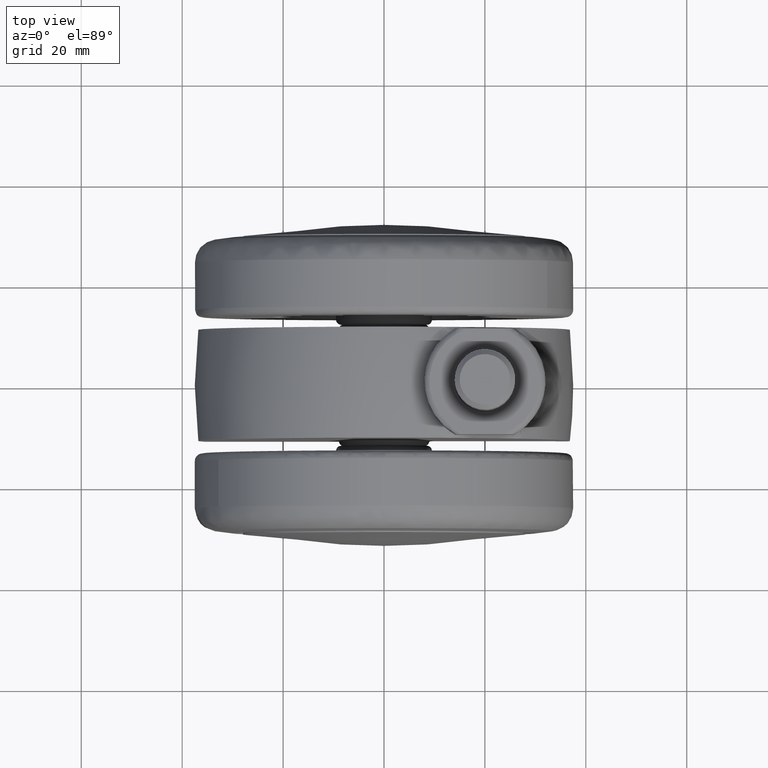
[diagram: clean part render]
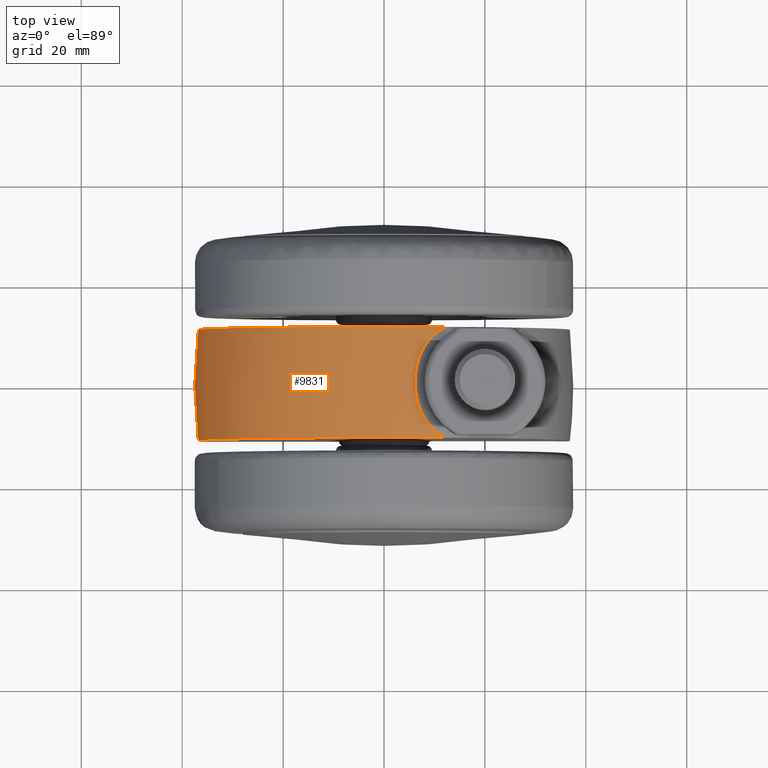
[diagram: same view with one face highlighted and labeled with its STEP entity id]
A machine part, top view. The second image highlights one B-rep face of the part: STEP entity #9831.
In plain terms, the highlighted face is a freeform B-spline surface patch.
Its self-contained STEP definition (entity closure, byte-faithful):
#8500=CARTESIAN_POINT('',(12.126221924218580,-11.0,34.843362679911948));
#8501=VERTEX_POINT('',#8500);
#9144=CARTESIAN_POINT('',(12.126223093466240,11.000000747168119,34.843361887155950));
#9145=VERTEX_POINT('',#9144);
#9492=CARTESIAN_POINT('',(-35.512042467496002,-11.0,-10.0));
#9493=VERTEX_POINT('',#9492);
#9494=CARTESIAN_POINT('',(-35.512042381589737,11.0,-10.0));
#9495=VERTEX_POINT('',#9494);
#9496=CARTESIAN_POINT('',(-35.512042467496009,-10.999999999999980,-10.0));
#9497=CARTESIAN_POINT('',(-35.722096988441528,-9.173054248229072,-10.0));
#9498=CARTESIAN_POINT('',(-35.879753233056597,-7.340362461635415,-10.0));
#9499=CARTESIAN_POINT('',(-36.037466574129184,-4.582686691157622,-9.999999999999998));
#9500=CARTESIAN_POINT('',(-36.076900044553547,-3.662020750382056,-9.999999999999998));
#9501=CARTESIAN_POINT('',(-36.116239311995969,-2.278849356673319,-10.0));
#9502=CARTESIAN_POINT('',(-36.130955343875449,-1.586720444074463,-9.999999999999998));
#9503=CARTESIAN_POINT('',(-36.139423116973433,-0.778282562026476,-9.999999999999993));
#9504=CARTESIAN_POINT('',(-36.141183633090328,-0.431604279640513,-10.0));
#9505=CARTESIAN_POINT('',(-36.141941615547573,-0.200439839291833,-9.999999999999996));
#9506=CARTESIAN_POINT('',(-36.142112622947081,-0.084648974540542,-10.0));
#9507=CARTESIAN_POINT('',(-36.141487291769003,1.876749695081560,-10.0));
#9508=CARTESIAN_POINT('',(-36.087916772033857,3.713734955211065,-10.0));
#9509=CARTESIAN_POINT('',(-35.877284262818407,7.370053165830350,-10.0));
#9510=CARTESIAN_POINT('',(-35.720219278112189,9.189385605431104,-10.0));
#9511=CARTESIAN_POINT('',(-35.512042381589737,11.0,-10.0));
#9512=B_SPLINE_CURVE_WITH_KNOTS('',3,(#9496,#9497,#9498,#9499,#9500,#9501,#9502,#9503,#9504,#9505,#9506,#9507,#9508,#9509,#9510,#9511),.UNSPECIFIED.,.F.,.U.,(4,2,2,1,1,2,2,2,4),(0.0,0.250000000000000,0.375000000000000,0.437500000000000,0.468750000000000,0.484375000000000,0.500000000000000,0.750000000000000,1.0),.UNSPECIFIED.);
#9513=EDGE_CURVE('',#9493,#9495,#9512,.T.);
#9535=CARTESIAN_POINT('',(-35.512042381589737,11.0,-10.0));
#9536=CARTESIAN_POINT('',(-41.575172040455577,11.000000747168121,11.531411741071825));
#9537=CARTESIAN_POINT('',(-25.287465517125270,11.000000747168119,26.863529958514839));
#9538=CARTESIAN_POINT('',(-8.999758993794949,11.000000747168121,42.195648175957864));
#9539=CARTESIAN_POINT('',(12.126223093466230,11.000000747168119,34.843361887155929));
#9547=(BOUNDED_CURVE()B_SPLINE_CURVE(2,(#9535,#9536,#9537,#9538,#9539),.UNSPECIFIED.,.F.,.U.)B_SPLINE_CURVE_WITH_KNOTS((3,2,3),(0.0,0.500000000000000,1.0),.UNSPECIFIED.)CURVE()GEOMETRIC_REPRESENTATION_ITEM()RATIONAL_B_SPLINE_CURVE((1.0,0.855102166442894,1.0,0.855102166442894,1.0))REPRESENTATION_ITEM(''));
#9548=EDGE_CURVE('',#9495,#9145,#9547,.T.);
#9641=CARTESIAN_POINT('',(-35.512042467496002,-11.0,-10.0));
#9642=CARTESIAN_POINT('',(-41.575172315174150,-11.0,11.531411424366825));
#9643=CARTESIAN_POINT('',(-25.287466255317721,-11.0,26.863529764076961));
#9644=CARTESIAN_POINT('',(-8.999760195461279,-11.0,42.195648103787100));
#9645=CARTESIAN_POINT('',(12.126221924218591,-11.0,34.843362679911962));
#9653=(BOUNDED_CURVE()B_SPLINE_CURVE(2,(#9641,#9642,#9643,#9644,#9645),.UNSPECIFIED.,.F.,.U.)B_SPLINE_CURVE_WITH_KNOTS((3,2,3),(0.0,0.500000000000000,1.0),.UNSPECIFIED.)CURVE()GEOMETRIC_REPRESENTATION_ITEM()RATIONAL_B_SPLINE_CURVE((1.0,0.855102171319762,1.0,0.855102171319762,1.0))REPRESENTATION_ITEM(''));
#9654=EDGE_CURVE('',#9493,#8501,#9653,.T.);
#9701=CARTESIAN_POINT('',(-34.393518256721613,12.106286625198722,-12.988964572272447));
#9702=CARTESIAN_POINT('',(-35.081600152330026,6.075486393675075,-13.248823749753743));
#9703=CARTESIAN_POINT('',(-35.081600152330026,0.0,-13.248823749753742));
#9704=CARTESIAN_POINT('',(-35.081600152330012,-6.075489046546312,-13.248823749753745));
#9705=CARTESIAN_POINT('',(-34.393517658027150,-12.106291872547819,-12.988964346171086));
#9706=CARTESIAN_POINT('',(-36.764484203306758,12.106286625198718,-6.710876729611210));
#9707=CARTESIAN_POINT('',(-37.500000000000007,6.075486393675076,-6.845135538112221));
#9708=CARTESIAN_POINT('',(-37.500000000000007,0.0,-6.845135538112219));
#9709=CARTESIAN_POINT('',(-37.500000000000007,-6.075489046546313,-6.845135538112221));
#9710=CARTESIAN_POINT('',(-36.764483563340434,-12.106291872547828,-6.710876612793710));
#9711=CARTESIAN_POINT('',(-36.764484203306758,12.106286625198722,0.0));
#9712=CARTESIAN_POINT('',(-37.500000000000014,6.075486393675076,0.0));
#9713=CARTESIAN_POINT('',(-37.500000000000007,0.0,0.0));
#9714=CARTESIAN_POINT('',(-37.500000000000007,-6.075489046546312,0.0));
#9715=CARTESIAN_POINT('',(-36.764483563340455,-12.106291872547825,0.0));
#9716=CARTESIAN_POINT('',(-36.764484203306750,12.106286625198724,36.764484203306750));
#9717=CARTESIAN_POINT('',(-37.500000000000014,6.075486393675077,37.500000000000014));
#9718=CARTESIAN_POINT('',(-37.500000000000007,0.0,37.500000000000007));
#9719=CARTESIAN_POINT('',(-37.500000000000000,-6.075489046546311,37.500000000000000));
#9720=CARTESIAN_POINT('',(-36.764483563340434,-12.106291872547823,36.764483563340434));
#9721=CARTESIAN_POINT('',(0.0,12.106286625198722,36.764484203306758));
#9722=CARTESIAN_POINT('',(0.0,6.075486393675076,37.500000000000014));
#9723=CARTESIAN_POINT('',(0.0,0.0,37.500000000000007));
#9724=CARTESIAN_POINT('',(0.0,-6.075489046546312,37.500000000000007));
#9725=CARTESIAN_POINT('',(0.0,-12.106291872547825,36.764483563340455));
#9726=CARTESIAN_POINT('',(7.929276459576783,12.106286625198722,36.764484203306750));
#9727=CARTESIAN_POINT('',(8.087910756201627,6.075486393675077,37.500000000000014));
#9728=CARTESIAN_POINT('',(8.087910756201627,0.0,37.500000000000014));
#9729=CARTESIAN_POINT('',(8.087910756201627,-6.075489046546313,37.500000000000007));
#9730=CARTESIAN_POINT('',(7.929276321550371,-12.106291872547828,36.764483563340441));
#9731=CARTESIAN_POINT('',(15.153652933276952,12.106286625198731,33.496180401845500));
#9732=CARTESIAN_POINT('',(15.456819191462335,6.075486393675075,34.166310021458891));
#9733=CARTESIAN_POINT('',(15.456819191462339,0.0,34.166310021458898));
#9734=CARTESIAN_POINT('',(15.456819191462339,-6.075489046546312,34.166310021458898));
#9735=CARTESIAN_POINT('',(15.153652669494456,-12.106291872547819,33.496179818771168));
#9743=(BOUNDED_SURFACE()B_SPLINE_SURFACE(2,2,((#9701,#9706,#9711,#9716,#9721,#9726,#9731),(#9702,#9707,#9712,#9717,#9722,#9727,#9732),(#9703,#9708,#9713,#9718,#9723,#9728,#9733),(#9704,#9709,#9714,#9719,#9724,#9729,#9734),(#9705,#9710,#9715,#9720,#9725,#9730,#9735)),.UNSPECIFIED.,.F.,.F.,.U.)B_SPLINE_SURFACE_WITH_KNOTS((3,2,3),(3,2,2,3),(0.0,12.273789478870100,24.547584243970409),(0.0,14.911688245431421,77.043722601395700,94.440690443453931),.UNSPECIFIED.)GEOMETRIC_REPRESENTATION_ITEM()RATIONAL_B_SPLINE_SURFACE(((0.872148246934755,0.907841700443486,0.976482957191046,0.690477720742882,0.976482957191046,0.896401499168235,0.861165653055901),(0.880963530359284,0.917017757291782,0.986352809085049,0.697456759946438,0.986352809085049,0.905461923591620,0.869869929345898),(0.893152553776853,0.929705627484771,1.0,0.707106781186548,1.0,0.917989907111975,0.881905461548590),(0.880963525109562,0.917017751827210,0.986352803207305,0.697456755790246,0.986352803207305,0.905461918195910,0.869869924162283),(0.872148239341402,0.907841692539368,0.976482948689302,0.690477714731241,0.976482948689302,0.896401491363720,0.861165645558167)))REPRESENTATION_ITEM('')SURFACE());
#9744=ORIENTED_EDGE('',*,*,#9654,.T.);
#9745=CARTESIAN_POINT('',(8.607245784522219,-7.957299986489421,36.172968912831593));
#9746=VERTEX_POINT('',#9745);
#9747=CARTESIAN_POINT('',(12.126221924218580,-11.0,34.843362679911948));
#9748=CARTESIAN_POINT('',(11.799095838577299,-10.806296467754679,34.979907752100956));
#9749=CARTESIAN_POINT('',(11.478244967766500,-10.597457714970460,35.110050933102968));
#9750=CARTESIAN_POINT('',(11.007303132461390,-10.260293252702420,35.296159183623573));
#9751=CARTESIAN_POINT('',(10.852047201792219,-10.143916078722571,35.356676385432493));
#9752=CARTESIAN_POINT('',(10.621889662695430,-9.963168164538461,35.445225397204887));
#9753=CARTESIAN_POINT('',(10.545625063374841,-9.901888130724018,35.474370527072537));
#9754=CARTESIAN_POINT('',(10.394030700641320,-9.777228695599881,35.531926022759393));
#9755=CARTESIAN_POINT('',(10.318595180210050,-9.713756608401232,35.560375813109978));
#9756=CARTESIAN_POINT('',(9.647026349836594,-9.135504204347592,35.812020863298812));
#9757=CARTESIAN_POINT('',(9.100877931429137,-8.571401168014114,36.005120700240013));
#9758=CARTESIAN_POINT('',(8.607245784522204,-7.957299986489437,36.172968912831607));
#9759=B_SPLINE_CURVE_WITH_KNOTS('',3,(#9747,#9748,#9749,#9750,#9751,#9752,#9753,#9754,#9755,#9756,#9757,#9758),.UNSPECIFIED.,.F.,.U.,(4,2,2,2,2,4),(0.0,0.250000000000003,0.375000000000004,0.437500000000004,0.500000000000004,1.0),.UNSPECIFIED.);
#9760=EDGE_CURVE('',#8501,#9746,#9759,.T.);
#9761=ORIENTED_EDGE('',*,*,#9760,.T.);
#9762=CARTESIAN_POINT('',(8.607245784507450,7.957299986471050,36.172968912836602));
#9763=VERTEX_POINT('',#9762);
#9764=CARTESIAN_POINT('',(8.607245784522219,-7.957299986489421,36.172968912831593));
#9765=CARTESIAN_POINT('',(8.496958977131698,-7.820098106203965,36.210469394939423));
#9766=CARTESIAN_POINT('',(8.390607204314371,-7.679107111343758,36.246490860340870));
#9767=CARTESIAN_POINT('',(8.186891252160029,-7.392390676628201,36.315258040134459));
#9768=CARTESIAN_POINT('',(8.089367493768343,-7.246488303123374,36.348058397183557));
#9769=CARTESIAN_POINT('',(7.808827633324061,-6.801729141308086,36.442123770043757));
#9770=CARTESIAN_POINT('',(7.637788719239484,-6.495852453900009,36.499074683719194));
#9771=CARTESIAN_POINT('',(7.324300417941277,-5.867392972614891,36.602967944277822));
#9772=CARTESIAN_POINT('',(7.181874913758498,-5.544796123623441,36.649901360713173));
#9773=CARTESIAN_POINT('',(7.020573124055120,-5.131800794547303,36.702865432172793));
#9774=CARTESIAN_POINT('',(6.989152127775905,-5.048712566980714,36.713171945913437));
#9775=CARTESIAN_POINT('',(6.927970336866713,-4.881569175903399,36.733222096809143));
#9776=CARTESIAN_POINT('',(6.898176849519109,-4.797416181745444,36.742976421261503));
#9777=CARTESIAN_POINT('',(6.811564947140610,-4.544412026462416,36.771309126694391));
#9778=CARTESIAN_POINT('',(6.757494929162611,-4.375002398014718,36.788964151500302));
#9779=CARTESIAN_POINT('',(6.605736580284802,-3.864668171596925,36.838450140696047));
#9780=CARTESIAN_POINT('',(6.518467398518663,-3.521644905202193,36.866814799325233));
#9781=CARTESIAN_POINT('',(6.369669744446151,-2.830420849997163,36.915103760646787));
#9782=CARTESIAN_POINT('',(6.308148612404872,-2.482218534155841,36.935024799858603));
#9783=CARTESIAN_POINT('',(6.209767851726224,-1.780857874962090,36.966855252008173));
#9784=CARTESIAN_POINT('',(6.172910018569697,-1.427699137480830,36.978763517828611));
#9785=CARTESIAN_POINT('',(6.135931196737831,-0.894283581126136,36.990707953772777));
#9786=CARTESIAN_POINT('',(6.126662599965027,-0.715864195216975,36.993700789674627));
#9787=CARTESIAN_POINT('',(6.114287255139607,-0.357787824596136,36.997696538582993));
#9788=CARTESIAN_POINT('',(6.111211946475398,-0.178951409063574,36.998689299203157));
#9789=CARTESIAN_POINT('',(6.111191746232069,0.356141095876161,36.998695820606208));
#9790=CARTESIAN_POINT('',(6.135635932060224,1.066546773903958,36.990806375710548));
#9791=CARTESIAN_POINT('',(6.208616489745466,1.770900177551668,36.967227417906173));
#9792=CARTESIAN_POINT('',(6.306497381808198,2.472147155335572,36.935559384598328));
#9793=CARTESIAN_POINT('',(6.367883817415943,2.821217970280862,36.915682674124980));
#9794=CARTESIAN_POINT('',(6.479776696653072,3.342350218368805,36.879371328118552));
#9795=CARTESIAN_POINT('',(6.520383807645826,3.515647716705299,36.866182092532412));
#9796=CARTESIAN_POINT('',(6.608506868147258,3.861379470864465,36.837522749416543));
#9797=CARTESIAN_POINT('',(6.656066986558853,4.033900828886450,36.822038157697492));
#9798=CARTESIAN_POINT('',(6.808248708359005,4.545715256746005,36.772414221924883));
#9799=CARTESIAN_POINT('',(6.922683399526024,4.880718849676765,36.735006097756617));
#9800=CARTESIAN_POINT('',(7.178901526961116,5.537622218479849,36.650879462367811));
#9801=CARTESIAN_POINT('',(7.320671060829293,5.859528766220305,36.604166462177993));
#9802=CARTESIAN_POINT('',(7.634080144457188,6.488992479121060,36.500307932976177));
#9803=CARTESIAN_POINT('',(7.805687327682128,6.796565316568158,36.443174577245479));
#9804=CARTESIAN_POINT('',(8.088733163542408,7.245574218777138,36.348272147099188));
#9805=CARTESIAN_POINT('',(8.186926075253014,7.392453323647287,36.315246474888582));
#9806=CARTESIAN_POINT('',(8.391053121813117,7.679721042064305,36.246340144402943));
#9807=CARTESIAN_POINT('',(8.497043497851220,7.820203253880569,36.210440655620523));
#9808=CARTESIAN_POINT('',(8.607245784507441,7.957299986471051,36.172968912836652));
#9809=B_SPLINE_CURVE_WITH_KNOTS('',3,(#9764,#9765,#9766,#9767,#9768,#9769,#9770,#9771,#9772,#9773,#9774,#9775,#9776,#9777,#9778,#9779,#9780,#9781,#9782,#9783,#9784,#9785,#9786,#9787,#9788,#9789,#9790,#9791,#9792,#9793,#9794,#9795,#9796,#9797,#9798,#9799,#9800,#9801,#9802,#9803,#9804,#9805,#9806,#9807,#9808),.UNSPECIFIED.,.F.,.U.,(4,2,2,2,2,2,2,2,2,2,2,2,2,1,2,2,2,2,2,2,2,2,4),(0.0,0.031250000000000,0.062500000000000,0.125000000000000,0.187500000000000,0.203125000000000,0.218750000000000,0.250000000000000,0.312500000000000,0.375000000000000,0.437500000000000,0.468750000000000,0.500000000000000,0.562500000000000,0.625000000000000,0.687500000000001,0.718750000000001,0.750000000000001,0.812500000000001,0.875000000000000,0.937500000000000,0.968750000000000,1.0),.UNSPECIFIED.);
#9810=EDGE_CURVE('',#9746,#9763,#9809,.T.);
#9811=ORIENTED_EDGE('',*,*,#9810,.T.);
#9812=CARTESIAN_POINT('',(8.607245784507438,7.957299986471064,36.172968912836637));
#9813=CARTESIAN_POINT('',(8.731242578964421,8.111557723651924,36.130806666218213));
#9814=CARTESIAN_POINT('',(8.858795647069790,8.262917859127830,36.086961391754791));
#9815=CARTESIAN_POINT('',(9.055438004841411,8.485596593578222,36.018539491607953));
#9816=CARTESIAN_POINT('',(9.121871197361388,8.559095682438615,35.995289659774258));
#9817=CARTESIAN_POINT('',(9.256508780544248,8.704634112347041,35.947880870617887));
#9818=CARTESIAN_POINT('',(9.324794144151328,8.776756271548582,35.923692985423507));
#9819=CARTESIAN_POINT('',(9.669607776188991,9.132627249138267,35.800789740794862));
#9820=CARTESIAN_POINT('',(9.955427354499175,9.401384354146389,35.696500368207552));
#9821=CARTESIAN_POINT('',(10.840430525609190,10.162405691099289,35.364754103208980));
#9822=CARTESIAN_POINT('',(11.467014351085060,10.609658700802990,35.118521578196592));
#9823=CARTESIAN_POINT('',(12.126223093466240,11.000000747168119,34.843361887155950));
#9824=B_SPLINE_CURVE_WITH_KNOTS('',3,(#9812,#9813,#9814,#9815,#9816,#9817,#9818,#9819,#9820,#9821,#9822,#9823),.UNSPECIFIED.,.F.,.U.,(4,2,2,2,2,4),(0.0,0.125000000000002,0.187500000000001,0.250000000000001,0.500000000000001,1.0),.UNSPECIFIED.);
#9825=EDGE_CURVE('',#9763,#9145,#9824,.T.);
#9826=ORIENTED_EDGE('',*,*,#9825,.T.);
#9827=ORIENTED_EDGE('',*,*,#9548,.F.);
#9828=ORIENTED_EDGE('',*,*,#9513,.F.);
#9829=EDGE_LOOP('',(#9744,#9761,#9811,#9826,#9827,#9828));
#9830=FACE_OUTER_BOUND('',#9829,.T.);
#9831=ADVANCED_FACE('',(#9830),#9743,.T.);